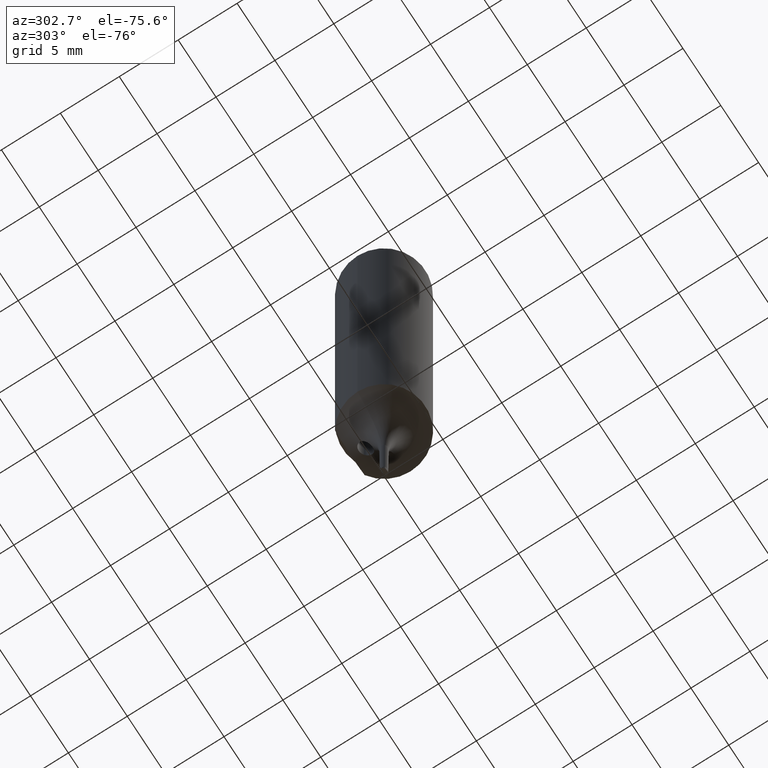
[diagram: clean part render]
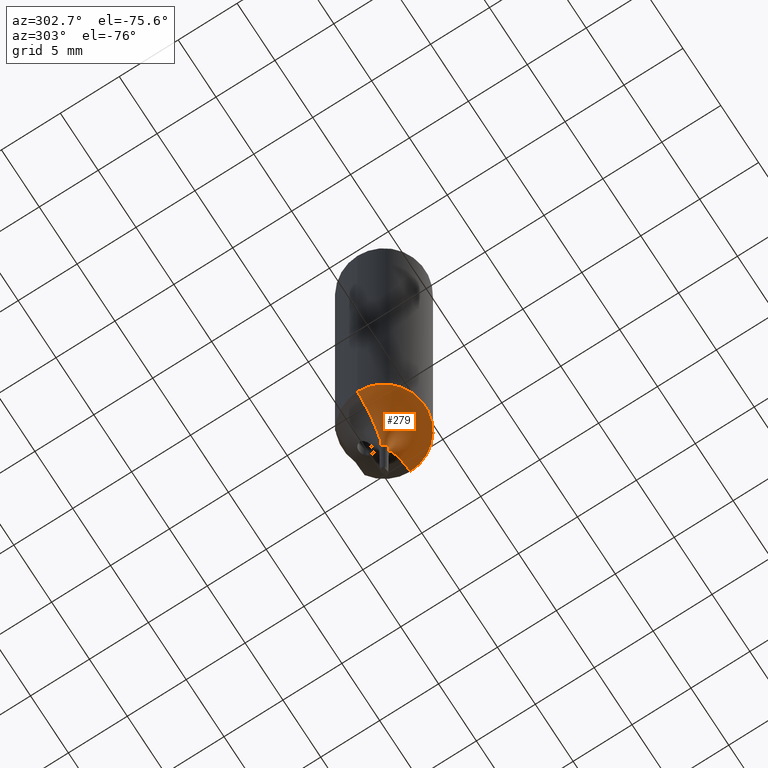
[diagram: same view with one face highlighted and labeled with its STEP entity id]
A machine part, auxiliary view. The second image highlights one B-rep face of the part: STEP entity #279.
In plain terms, the highlighted toroidal blend (fillet) surface has major radius 6.348 mm and minor (blend) radius 6 mm.
Its self-contained STEP definition (entity closure, byte-faithful):
#167=VERTEX_POINT('NONE',#429);
#177=VERTEX_POINT('NONE',#440);
#195=VERTEX_POINT('NONE',#461);
#227=EDGE_CURVE('NONE',#195,#297,#495,.T.);
#279=ADVANCED_FACE('NONE',(#555),#556,.F.);
#287=EDGE_CURVE('NONE',#195,#167,#566,.T.);
#297=VERTEX_POINT('NONE',#576);
#303=EDGE_CURVE('NONE',#167,#177,#582,.F.);
#353=EDGE_CURVE('NONE',#297,#177,#639,.T.);
#429=CARTESIAN_POINT('',(-0.348184574411854,1.25831955236671E-015,-44.5345529859889));
#440=CARTESIAN_POINT('',(0.348184574411854,-1.21568064815394E-015,-44.5345529859889));
#461=CARTESIAN_POINT('',(-3.5,1.26488039877207E-014,-39.3));
#495=CIRCLE('',#876,3.5);
#555=FACE_OUTER_BOUND('',#981,.T.);
#556=TOROIDAL_SURFACE('',#982,6.34800486256179,6.0);
#566=CIRCLE('',#994,6.0);
#576=CARTESIAN_POINT('',(3.5,-1.22201917638828E-014,-39.3));
#582=CIRCLE('',#1044,0.348184574411854);
#639=CIRCLE('',#1220,6.0);
#876=AXIS2_PLACEMENT_3D('',#1397,#1398,#1399);
#981=EDGE_LOOP('',(#1481,#1482,#1483,#1484));
#982=AXIS2_PLACEMENT_3D('',#1485,#1486,#1487);
#994=AXIS2_PLACEMENT_3D('',#1503,#1504,#1505);
#1044=AXIS2_PLACEMENT_3D('',#1512,#1513,#1514);
#1220=AXIS2_PLACEMENT_3D('',#1579,#1580,#1581);
#1397=CARTESIAN_POINT('',(0.0,0.0,-39.3));
#1398=DIRECTION('',(0.0,-0.0,1.0));
#1399=DIRECTION('',(1.0,-3.49148336110938E-015,-0.0));
#1481=ORIENTED_EDGE('',*,*,#227,.F.);
#1482=ORIENTED_EDGE('',*,*,#287,.T.);
#1483=ORIENTED_EDGE('',*,*,#303,.T.);
#1484=ORIENTED_EDGE('',*,*,#353,.F.);
#1485=CARTESIAN_POINT('',(0.0,0.0,-44.5809912235133));
#1486=DIRECTION('',(0.0,0.0,1.0));
#1487=DIRECTION('',(1.0,-3.49148336110938E-015,-0.0));
#1503=CARTESIAN_POINT('',(-6.34800486256179,2.29413340627548E-014,-44.5809912235133));
#1504=DIRECTION('',(3.61394399649162E-015,1.0,0.0));
#1505=DIRECTION('',(1.0,-3.61394399649162E-015,-0.0));
#1512=CARTESIAN_POINT('',(0.0,0.0,-44.5345529859889));
#1513=DIRECTION('',(0.0,0.0,-1.0));
#1514=DIRECTION('',(1.0,-3.49148336110938E-015,0.0));
#1579=CARTESIAN_POINT('',(6.34800486256179,-2.21639533538759E-014,-44.5809912235133));
#1580=DIRECTION('',(-3.49148336110938E-015,-1.0,0.0));
#1581=DIRECTION('',(-1.0,3.49148336110938E-015,0.0));